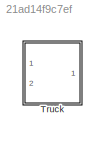
MODEL slx_21ad14f9c7ef
KIND model
CONFIG AbsTol = auto
CONFIG EnableMultiTasking = off
CONFIG FixedStep = auto
CONFIG MaxStep = 0.01
CONFIG MinStep = auto
CONFIG RelTol = 1e-3
CONFIG SampleTimeConstraint = Unconstrained
CONFIG Solver = VariableStepAuto
CONFIG SolverName = VariableStepAuto
CONFIG StartTime = 0.0
CONFIG StopTime = 10.0
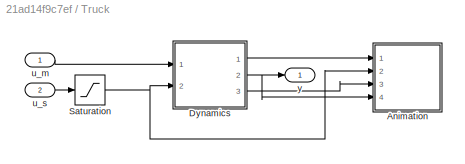
BLOCK [SubSystem] Truck
  Ports = [2, 1]
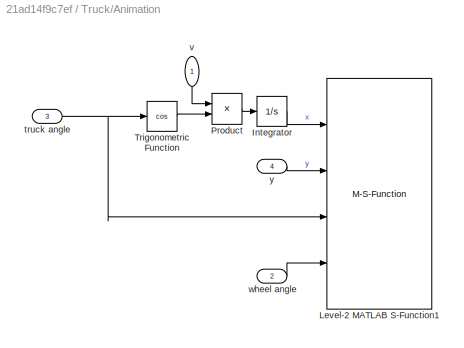
BLOCK [SubSystem] Truck/Animation
  Ports = [4]
BLOCK [Integrator] Truck/Animation/Integrator
  Ports = [1, 1]
BLOCK [M-S-Function] Truck/Animation/Level-2 MATLAB S-Function1
  FunctionName = truckAboveSFunction
  Ports = [4]
BLOCK [Product] Truck/Animation/Product
  Ports = [2, 1]
BLOCK [Trigonometry] Truck/Animation/Trigonometric Function
  Operator = cos
  Ports = [1, 1]
BLOCK [Inport] Truck/Animation/truck angle
  Port = 3
BLOCK [Inport] Truck/Animation/v
BLOCK [Inport] Truck/Animation/wheel angle
  Port = 2
BLOCK [Inport] Truck/Animation/y
  Port = 4
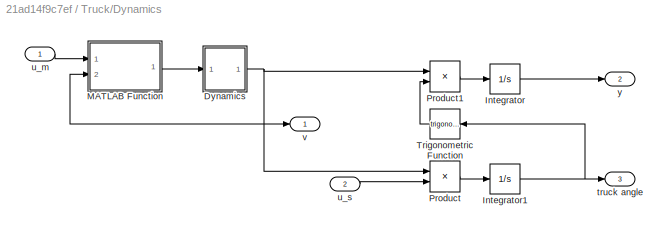
BLOCK [SubSystem] Truck/Dynamics
  ClipboardFcn = parameters_truck.m
  Ports = [2, 3]
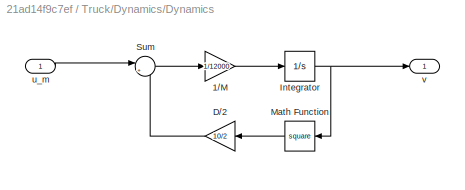
BLOCK [SubSystem] Truck/Dynamics/Dynamics
  ClipboardFcn = parameters_truck.m
  Ports = [1, 1]
BLOCK [Gain] Truck/Dynamics/Dynamics/1//M
  Gain = 1/12000
BLOCK [Gain] Truck/Dynamics/Dynamics/D//2
  Gain = 10/2
BLOCK [Integrator] Truck/Dynamics/Dynamics/Integrator
  Ports = [1, 1]
BLOCK [Math] Truck/Dynamics/Dynamics/Math Function
  Operator = square
  Ports = [1, 1]
BLOCK [Sum] Truck/Dynamics/Dynamics/Sum
  Inputs = |+-
  Ports = [2, 1]
BLOCK [Inport] Truck/Dynamics/Dynamics/u_m
BLOCK [Outport] Truck/Dynamics/Dynamics/v
BLOCK [Integrator] Truck/Dynamics/Integrator
  InitialCondition = -2
  Ports = [1, 1]
BLOCK [Integrator] Truck/Dynamics/Integrator1
  Ports = [1, 1]
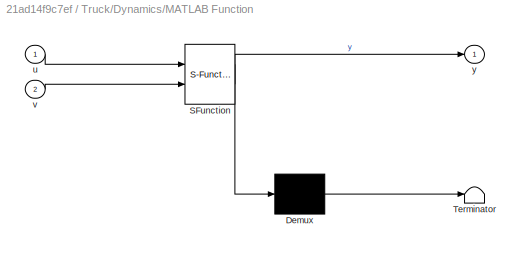
BLOCK [SubSystem] Truck/Dynamics/MATLAB Function
  ErrorFcn = Stateflow.Translate.translate
  PermitHierarchicalResolution = ExplicitOnly
  Ports = [2, 1]
  SFBlockType = MATLAB Function
  TreatAsAtomicUnit = on
BLOCK [Demux] Truck/Dynamics/MATLAB Function/ Demux 
  Outputs = 1
  Ports = [1, 1]
BLOCK [S-Function] Truck/Dynamics/MATLAB Function/ SFunction 
  EnableBusSupport = on
  FunctionName = sf_sfun
  PortCounts = [2 2]
  Ports = [2, 2]
  SFcnIsStateOwnerBlock = off
  SFunctionDeploymentMode = off
  Tag = Stateflow S-Function 1
BLOCK [Terminator] Truck/Dynamics/MATLAB Function/ Terminator 
BLOCK [Inport] Truck/Dynamics/MATLAB Function/u
BLOCK [Inport] Truck/Dynamics/MATLAB Function/v
  Port = 2
BLOCK [Outport] Truck/Dynamics/MATLAB Function/y
BLOCK [Product] Truck/Dynamics/Product
  Ports = [2, 1]
BLOCK [Product] Truck/Dynamics/Product1
  Ports = [2, 1]
BLOCK [Trigonometry] Truck/Dynamics/Trigonometric Function
  Ports = [1, 1]
BLOCK [Outport] Truck/Dynamics/truck angle
  Port = 3
BLOCK [Inport] Truck/Dynamics/u_m
BLOCK [Inport] Truck/Dynamics/u_s
  Port = 2
BLOCK [Outport] Truck/Dynamics/v
BLOCK [Outport] Truck/Dynamics/y
  Port = 2
BLOCK [Saturate] Truck/Saturation
  LowerLimit = -pi/4
  UpperLimit = pi/4
BLOCK [Inport] Truck/u_m
BLOCK [Inport] Truck/u_s
  Port = 2
BLOCK [Outport] Truck/y
LINE Truck/Animation/Integrator:1 -> Truck/Animation/Level-2 MATLAB S-Function1:1
LINE Truck/Animation/Product:1 -> Truck/Animation/Integrator:1
LINE Truck/Animation/Trigonometric Function:1 -> Truck/Animation/Product:2
NET Truck/Animation/truck angle:1 -> Truck/Animation/Level-2 MATLAB S-Function1:3, Truck/Animation/Trigonometric Function:1
LINE Truck/Animation/v:1 -> Truck/Animation/Product:1
LINE Truck/Animation/wheel angle:1 -> Truck/Animation/Level-2 MATLAB S-Function1:4
LINE Truck/Animation/y:1 -> Truck/Animation/Level-2 MATLAB S-Function1:2
LINE Truck/Dynamics/Dynamics/1//M:1 -> Truck/Dynamics/Dynamics/Integrator:1
LINE Truck/Dynamics/Dynamics/D//2:1 -> Truck/Dynamics/Dynamics/Sum:2
NET Truck/Dynamics/Dynamics/Integrator:1 -> Truck/Dynamics/Dynamics/Math Function:1, Truck/Dynamics/Dynamics/v:1
LINE Truck/Dynamics/Dynamics/Math Function:1 -> Truck/Dynamics/Dynamics/D//2:1
LINE Truck/Dynamics/Dynamics/Sum:1 -> Truck/Dynamics/Dynamics/1//M:1
LINE Truck/Dynamics/Dynamics/u_m:1 -> Truck/Dynamics/Dynamics/Sum:1
NET Truck/Dynamics/Dynamics:1 -> Truck/Dynamics/MATLAB Function:2, Truck/Dynamics/Product1:1, Truck/Dynamics/Product:1, Truck/Dynamics/v:1
NET Truck/Dynamics/Integrator1:1 -> Truck/Dynamics/Trigonometric Function:1, Truck/Dynamics/truck angle:1
LINE Truck/Dynamics/Integrator:1 -> Truck/Dynamics/y:1
LINE Truck/Dynamics/MATLAB Function:1 -> Truck/Dynamics/Dynamics:1
LINE Truck/Dynamics/Product1:1 -> Truck/Dynamics/Integrator:1
LINE Truck/Dynamics/Product:1 -> Truck/Dynamics/Integrator1:1
LINE Truck/Dynamics/Trigonometric Function:1 -> Truck/Dynamics/Product1:2
LINE Truck/Dynamics/u_m:1 -> Truck/Dynamics/MATLAB Function:1
LINE Truck/Dynamics/u_s:1 -> Truck/Dynamics/Product:2
LINE Truck/Dynamics:1 -> Truck/Animation:1
NET Truck/Dynamics:2 -> Truck/Animation:4, Truck/y:1
LINE Truck/Dynamics:3 -> Truck/Animation:3
NET Truck/Saturation:1 -> Truck/Animation:2, Truck/Dynamics:2
LINE Truck/u_m:1 -> Truck/Dynamics:1
LINE Truck/u_s:1 -> Truck/Saturation:1
note: NET lines group one-source signal fan-out (src -> all destinations, sorted); 1:1 wires keep LINE
CHART Truck/Dynamics/MATLAB Function states=1 transitions=1
  STATE_LABEL 'eML_blk_kernel()'
  STATE_LABEL 'SCRIPT:\nfunction y = saturation(u,v)\n    Pmax = 400000;\n    epsilon = 0.1;\n    \n    sat = Pmax/sqrt(v^2+epsilon);\n    y = max(min(u,sat),-sat);\n'
